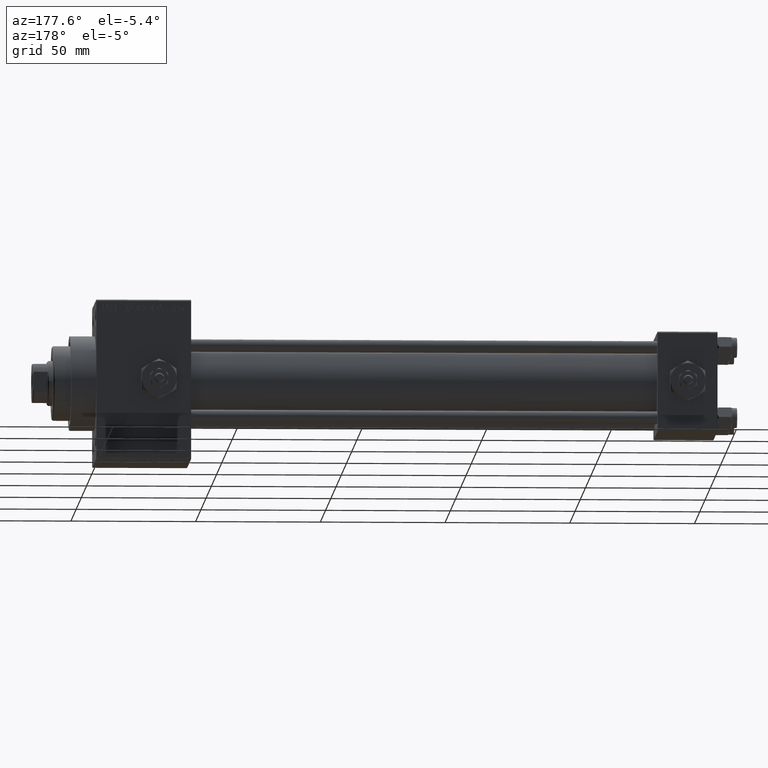
[diagram: clean part render]
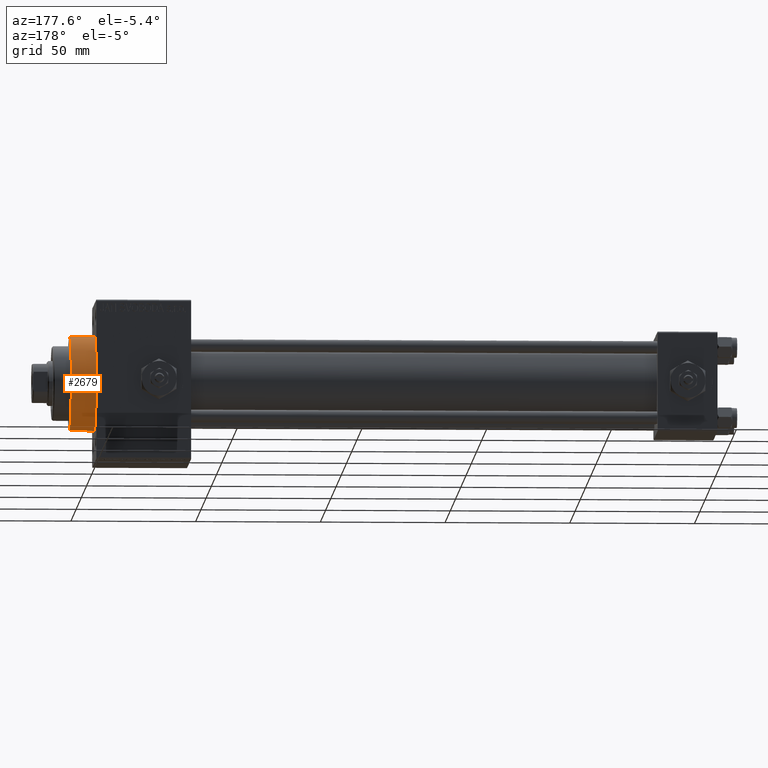
[diagram: same view with one face highlighted and labeled with its STEP entity id]
A machine part, auxiliary view. The second image highlights one B-rep face of the part: STEP entity #2679.
In plain terms, the highlighted cylindrical surface (partial cylindrical patch) has radius 19 mm, axis along (-1, -0, -0).
Its self-contained STEP definition (entity closure, byte-faithful):
#904 = DIRECTION ( 'NONE',  ( -1.000000000000000000, -0.000000000000000000, -0.000000000000000000 ) ) ;
#1049 = DIRECTION ( 'NONE',  ( 1.000000000000000000, 0.000000000000000000, 0.000000000000000000 ) ) ;
#1720 = VERTEX_POINT ( 'NONE', #3163 ) ;
#1943 = CARTESIAN_POINT ( 'NONE',  ( 259.0000000000000000, 0.000000000000000000, 19.00000000000000000 ) ) ;
#2679 = ADVANCED_FACE ( 'NONE', ( #16290 ), #28445, .T. ) ;
#3163 = CARTESIAN_POINT ( 'NONE',  ( 259.0000000000000000, 0.000000000000000000, 19.00000000000000000 ) ) ;
#4624 = CARTESIAN_POINT ( 'NONE',  ( 259.0000000000000000, 0.000000000000000000, 0.000000000000000000 ) ) ;
#5317 = ORIENTED_EDGE ( 'NONE', *, *, #5366, .T. ) ;
#5366 = EDGE_CURVE ( 'NONE', #10869, #25140, #11646, .T. ) ;
#6340 = EDGE_CURVE ( 'NONE', #10869, #1720, #24248, .T. ) ;
#6730 = EDGE_LOOP ( 'NONE', ( #16483, #5317, #45475, #28142 ) ) ;
#7698 = DIRECTION ( 'NONE',  ( -1.000000000000000000, -0.000000000000000000, -0.000000000000000000 ) ) ;
#9258 = VECTOR ( 'NONE', #47103, 1000.000000000000000 ) ;
#10741 = VECTOR ( 'NONE', #7698, 1000.000000000000000 ) ;
#10869 = VERTEX_POINT ( 'NONE', #32181 ) ;
#11646 = LINE ( 'NONE', #41664, #10741 ) ;
#12274 = CARTESIAN_POINT ( 'NONE',  ( 249.0000000000000000, 2.326828918379970970E-15, -19.00000000000000000 ) ) ;
#12279 = VERTEX_POINT ( 'NONE', #30634 ) ;
#13558 = DIRECTION ( 'NONE',  ( 0.000000000000000000, 0.000000000000000000, -1.000000000000000000 ) ) ;
#16254 = AXIS2_PLACEMENT_3D ( 'NONE', #19435, #1049, #45493 ) ;
#16290 = FACE_OUTER_BOUND ( 'NONE', #6730, .T. ) ;
#16483 = ORIENTED_EDGE ( 'NONE', *, *, #6340, .F. ) ;
#19435 = CARTESIAN_POINT ( 'NONE',  ( 249.0000000000000000, 0.000000000000000000, 0.000000000000000000 ) ) ;
#20013 = DIRECTION ( 'NONE',  ( 0.000000000000000000, 0.000000000000000000, 1.000000000000000000 ) ) ;
#20755 = CARTESIAN_POINT ( 'NONE',  ( 259.0000000000000000, 0.000000000000000000, 0.000000000000000000 ) ) ;
#22669 = AXIS2_PLACEMENT_3D ( 'NONE', #20755, #35892, #13558 ) ;
#22838 = EDGE_CURVE ( 'NONE', #1720, #12279, #39663, .T. ) ;
#24248 = CIRCLE ( 'NONE', #22669, 19.00000000000000000 ) ;
#25140 = VERTEX_POINT ( 'NONE', #12274 ) ;
#25718 = AXIS2_PLACEMENT_3D ( 'NONE', #4624, #904, #20013 ) ;
#28142 = ORIENTED_EDGE ( 'NONE', *, *, #22838, .F. ) ;
#28445 = CYLINDRICAL_SURFACE ( 'NONE', #25718, 19.00000000000000000 ) ;
#30535 = CIRCLE ( 'NONE', #16254, 19.00000000000000000 ) ;
#30634 = CARTESIAN_POINT ( 'NONE',  ( 249.0000000000000000, 0.000000000000000000, 19.00000000000000000 ) ) ;
#32181 = CARTESIAN_POINT ( 'NONE',  ( 259.0000000000000000, 2.326828918379970970E-15, -19.00000000000000000 ) ) ;
#35892 = DIRECTION ( 'NONE',  ( 1.000000000000000000, 0.000000000000000000, 0.000000000000000000 ) ) ;
#39663 = LINE ( 'NONE', #1943, #9258 ) ;
#41664 = CARTESIAN_POINT ( 'NONE',  ( 259.0000000000000000, 2.326828918379970970E-15, -19.00000000000000000 ) ) ;
#45475 = ORIENTED_EDGE ( 'NONE', *, *, #48408, .T. ) ;
#45493 = DIRECTION ( 'NONE',  ( 0.000000000000000000, 0.000000000000000000, -1.000000000000000000 ) ) ;
#47103 = DIRECTION ( 'NONE',  ( -1.000000000000000000, -0.000000000000000000, -0.000000000000000000 ) ) ;
#48408 = EDGE_CURVE ( 'NONE', #25140, #12279, #30535, .T. ) ;